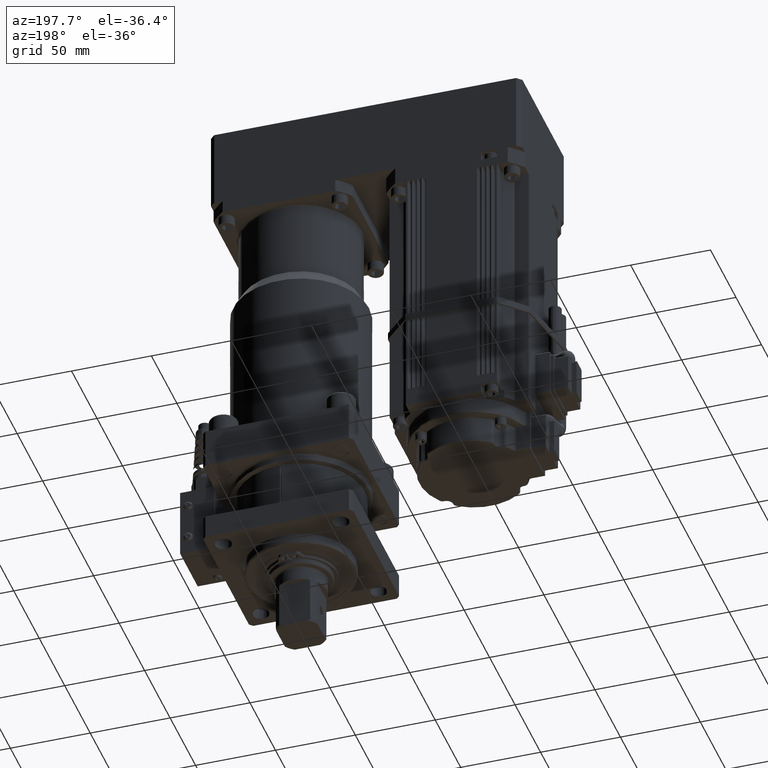
[diagram: clean part render]
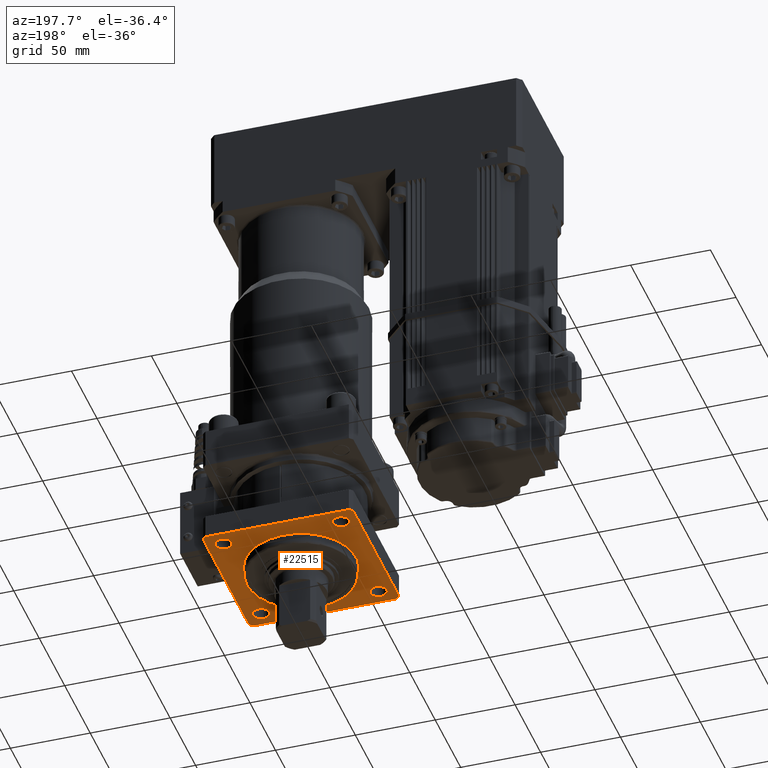
[diagram: same view with one face highlighted and labeled with its STEP entity id]
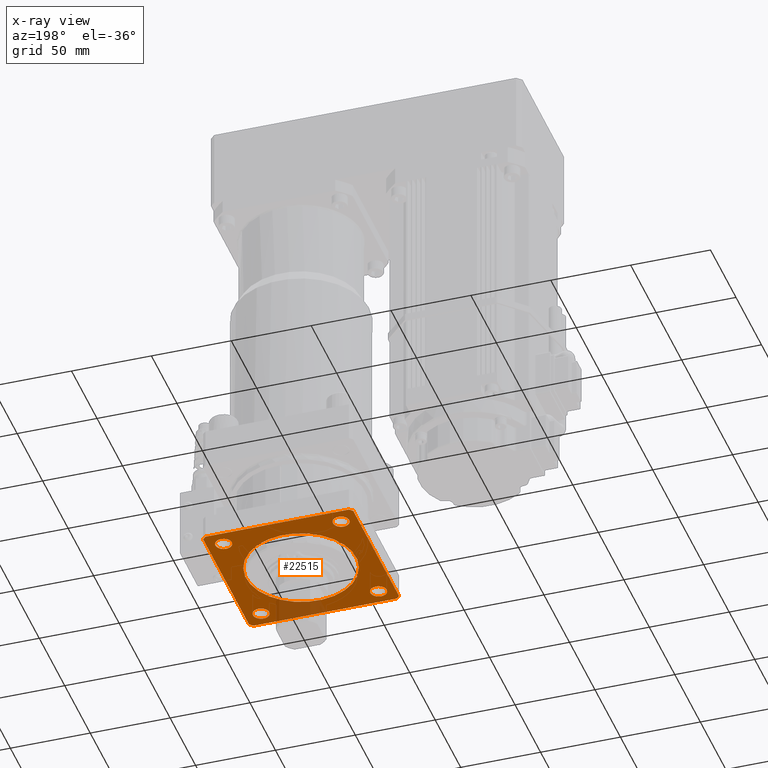
[diagram: x-ray of the same camera — body ghosted, the highlighted face saturated]
A machine part, auxiliary view. The second image highlights one B-rep face of the part: STEP entity #22515.
The next image is the same camera in x-ray: the body ghosted, the highlighted face saturated — about 10% of this face is hidden behind the body in this view.
In plain terms, the highlighted planar face has unit normal (0, 0, -1).
Its self-contained STEP definition (entity closure, byte-faithful):
#380=FACE_BOUND('',#7862,.T.);
#381=FACE_BOUND('',#7863,.T.);
#382=FACE_BOUND('',#7864,.T.);
#383=FACE_BOUND('',#7865,.T.);
#384=FACE_BOUND('',#7866,.T.);
#1052=PLANE('',#24557);
#3055=LINE('',#37283,#5029);
#3056=LINE('',#37287,#5030);
#3057=LINE('',#37291,#5031);
#3058=LINE('',#37295,#5032);
#5029=VECTOR('',#30372,10.);
#5030=VECTOR('',#30375,10.);
#5031=VECTOR('',#30378,10.);
#5032=VECTOR('',#30381,10.);
#6550=FACE_OUTER_BOUND('',#7861,.T.);
#7861=EDGE_LOOP('',(#19606,#19607,#19608,#19609,#19610,#19611,#19612,#19613));
#7862=EDGE_LOOP('',(#19614));
#7863=EDGE_LOOP('',(#19615));
#7864=EDGE_LOOP('',(#19616));
#7865=EDGE_LOOP('',(#19617));
#7866=EDGE_LOOP('',(#19618));
#8843=CIRCLE('',#24556,34.5);
#8844=CIRCLE('',#24558,65.);
#8845=CIRCLE('',#24559,65.);
#8846=CIRCLE('',#24560,65.);
#8847=CIRCLE('',#24561,65.);
#8848=CIRCLE('',#24562,5.125);
#8849=CIRCLE('',#24563,5.125);
#8850=CIRCLE('',#24564,5.125);
#8851=CIRCLE('',#24565,5.125);
#10762=VERTEX_POINT('',#37277);
#10763=VERTEX_POINT('',#37281);
#10764=VERTEX_POINT('',#37282);
#10765=VERTEX_POINT('',#37284);
#10766=VERTEX_POINT('',#37286);
#10767=VERTEX_POINT('',#37288);
#10768=VERTEX_POINT('',#37290);
#10769=VERTEX_POINT('',#37292);
#10770=VERTEX_POINT('',#37294);
#10771=VERTEX_POINT('',#37297);
#10772=VERTEX_POINT('',#37299);
#10773=VERTEX_POINT('',#37301);
#10774=VERTEX_POINT('',#37303);
#13756=EDGE_CURVE('',#10762,#10762,#8843,.T.);
#13757=EDGE_CURVE('',#10763,#10764,#3055,.T.);
#13758=EDGE_CURVE('',#10764,#10765,#8844,.T.);
#13759=EDGE_CURVE('',#10765,#10766,#3056,.T.);
#13760=EDGE_CURVE('',#10766,#10767,#8845,.T.);
#13761=EDGE_CURVE('',#10767,#10768,#3057,.T.);
#13762=EDGE_CURVE('',#10768,#10769,#8846,.T.);
#13763=EDGE_CURVE('',#10769,#10770,#3058,.T.);
#13764=EDGE_CURVE('',#10770,#10763,#8847,.T.);
#13765=EDGE_CURVE('',#10771,#10771,#8848,.T.);
#13766=EDGE_CURVE('',#10772,#10772,#8849,.T.);
#13767=EDGE_CURVE('',#10773,#10773,#8850,.T.);
#13768=EDGE_CURVE('',#10774,#10774,#8851,.T.);
#19606=ORIENTED_EDGE('',*,*,#13757,.T.);
#19607=ORIENTED_EDGE('',*,*,#13758,.T.);
#19608=ORIENTED_EDGE('',*,*,#13759,.T.);
#19609=ORIENTED_EDGE('',*,*,#13760,.T.);
#19610=ORIENTED_EDGE('',*,*,#13761,.T.);
#19611=ORIENTED_EDGE('',*,*,#13762,.T.);
#19612=ORIENTED_EDGE('',*,*,#13763,.T.);
#19613=ORIENTED_EDGE('',*,*,#13764,.T.);
#19614=ORIENTED_EDGE('',*,*,#13765,.T.);
#19615=ORIENTED_EDGE('',*,*,#13766,.T.);
#19616=ORIENTED_EDGE('',*,*,#13767,.T.);
#19617=ORIENTED_EDGE('',*,*,#13768,.T.);
#19618=ORIENTED_EDGE('',*,*,#13756,.F.);
#22515=ADVANCED_FACE('',(#6550,#380,#381,#382,#383,#384),#1052,.T.);
#24556=AXIS2_PLACEMENT_3D('',#37279,#30368,#30369);
#24557=AXIS2_PLACEMENT_3D('',#37280,#30370,#30371);
#24558=AXIS2_PLACEMENT_3D('',#37285,#30373,#30374);
#24559=AXIS2_PLACEMENT_3D('',#37289,#30376,#30377);
#24560=AXIS2_PLACEMENT_3D('',#37293,#30379,#30380);
#24561=AXIS2_PLACEMENT_3D('',#37296,#30382,#30383);
#24562=AXIS2_PLACEMENT_3D('',#37298,#30384,#30385);
#24563=AXIS2_PLACEMENT_3D('',#37300,#30386,#30387);
#24564=AXIS2_PLACEMENT_3D('',#37302,#30388,#30389);
#24565=AXIS2_PLACEMENT_3D('',#37304,#30390,#30391);
#30368=DIRECTION('center_axis',(5.9693332104316E-16,2.04895557754938E-16,
-1.));
#30369=DIRECTION('ref_axis',(0.707106781186548,0.707106781186547,5.66978637549342E-16));
#30370=DIRECTION('center_axis',(5.9693332104316E-16,2.04895557754938E-16,
-1.));
#30371=DIRECTION('ref_axis',(0.707106781186547,-0.707106781186548,2.77212560902308E-16));
#30372=DIRECTION('',(1.11022302462516E-16,1.,2.04895557754938E-16));
#30373=DIRECTION('center_axis',(5.9693332104316E-16,2.04895557754938E-16,
-1.));
#30374=DIRECTION('ref_axis',(0.707106781186547,-0.707106781186548,2.77212560902308E-16));
#30375=DIRECTION('',(1.,1.11022302462516E-16,5.9693332104316E-16));
#30376=DIRECTION('center_axis',(5.9693332104316E-16,2.04895557754938E-16,
-1.));
#30377=DIRECTION('ref_axis',(0.707106781186547,-0.707106781186548,2.77212560902308E-16));
#30378=DIRECTION('',(-1.11022302462516E-16,-1.,-2.04895557754938E-16));
#30379=DIRECTION('center_axis',(5.9693332104316E-16,2.04895557754938E-16,
-1.));
#30380=DIRECTION('ref_axis',(0.707106781186547,-0.707106781186548,2.77212560902308E-16));
#30381=DIRECTION('',(-1.,-1.11022302462516E-16,-5.9693332104316E-16));
#30382=DIRECTION('center_axis',(5.9693332104316E-16,2.04895557754938E-16,
-1.));
#30383=DIRECTION('ref_axis',(0.707106781186547,-0.707106781186548,2.77212560902308E-16));
#30384=DIRECTION('center_axis',(-5.9693332104316E-16,-2.04895557754938E-16,
1.));
#30385=DIRECTION('ref_axis',(1.,-1.08314441426845E-16,5.9693332104316E-16));
#30386=DIRECTION('center_axis',(-5.9693332104316E-16,-2.04895557754938E-16,
1.));
#30387=DIRECTION('ref_axis',(-1.08314441426845E-16,-1.,-2.04895557754938E-16));
#30388=DIRECTION('center_axis',(-5.9693332104316E-16,-2.04895557754938E-16,
1.));
#30389=DIRECTION('ref_axis',(-1.,1.08314441426845E-16,-5.9693332104316E-16));
#30390=DIRECTION('center_axis',(-5.9693332104316E-16,-2.04895557754938E-16,
1.));
#30391=DIRECTION('ref_axis',(0.,1.,2.04895557754938E-16));
#37277=CARTESIAN_POINT('',(-71.3951839509358,22.6048160490641,-3.5527136788005E-14));
#37279=CARTESIAN_POINT('Origin',(-46.9999999999999,47.,-1.77635683940025E-14));
#37280=CARTESIAN_POINT('Origin',(-71.0416305603426,22.9583694396574,-3.5527136788005E-14));
#37281=CARTESIAN_POINT('',(-93.9999999999999,2.10011135871272,-5.32907051820075E-14));
#37282=CARTESIAN_POINT('',(-93.9999999999999,91.8998886412873,-3.5527136788005E-14));
#37283=CARTESIAN_POINT('',(-93.9999999999999,57.4291290404723,-4.44089209850063E-14));
#37284=CARTESIAN_POINT('',(-91.8998886412872,94.,-3.5527136788005E-14));
#37285=CARTESIAN_POINT('Origin',(-46.9999999999999,47.,-1.77635683940025E-14));
#37286=CARTESIAN_POINT('',(-2.10011135871265,94.,1.77635683940025E-14));
#37287=CARTESIAN_POINT('',(-36.5708709595276,94.,0.));
#37288=CARTESIAN_POINT('',(7.99360577730113E-14,91.8998886412873,1.77635683940025E-14));
#37289=CARTESIAN_POINT('Origin',(-46.9999999999999,47.,-1.77635683940025E-14));
#37290=CARTESIAN_POINT('',(6.21724893790088E-14,2.10011135871272,0.));
#37291=CARTESIAN_POINT('',(7.105427357601E-14,12.529240399185,8.88178419700125E-15));
#37292=CARTESIAN_POINT('',(-2.10011135871263,0.,0.));
#37293=CARTESIAN_POINT('Origin',(-46.9999999999999,47.,-1.77635683940025E-14));
#37294=CARTESIAN_POINT('',(-91.8998886412872,8.88178419700125E-15,-5.32907051820075E-14));
#37295=CARTESIAN_POINT('',(-81.4707596008149,0.,-5.32907051820075E-14));
#37296=CARTESIAN_POINT('Origin',(-46.9999999999999,47.,-1.77635683940025E-14));
#37297=CARTESIAN_POINT('',(-88.8945526217004,10.2304473782995,-5.32907051820075E-14));
#37298=CARTESIAN_POINT('Origin',(-83.7695526217004,10.2304473782995,-4.44089209850063E-14));
#37299=CARTESIAN_POINT('',(-83.7695526217004,88.8945526217005,-3.5527136788005E-14));
#37300=CARTESIAN_POINT('Origin',(-83.7695526217004,83.7695526217005,-3.5527136788005E-14));
#37301=CARTESIAN_POINT('',(-5.10544737829947,83.7695526217005,1.77635683940025E-14));
#37302=CARTESIAN_POINT('Origin',(-10.2304473782995,83.7695526217005,8.88178419700125E-15));
#37303=CARTESIAN_POINT('',(-10.2304473782995,5.10544737829954,0.));
#37304=CARTESIAN_POINT('Origin',(-10.2304473782995,10.2304473782995,0.));